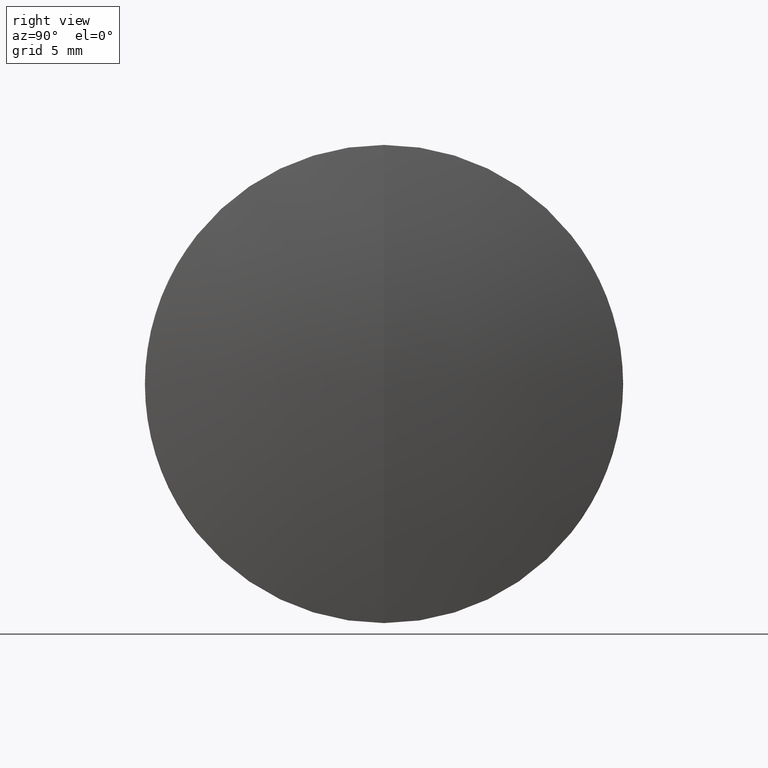
[diagram: clean part render]
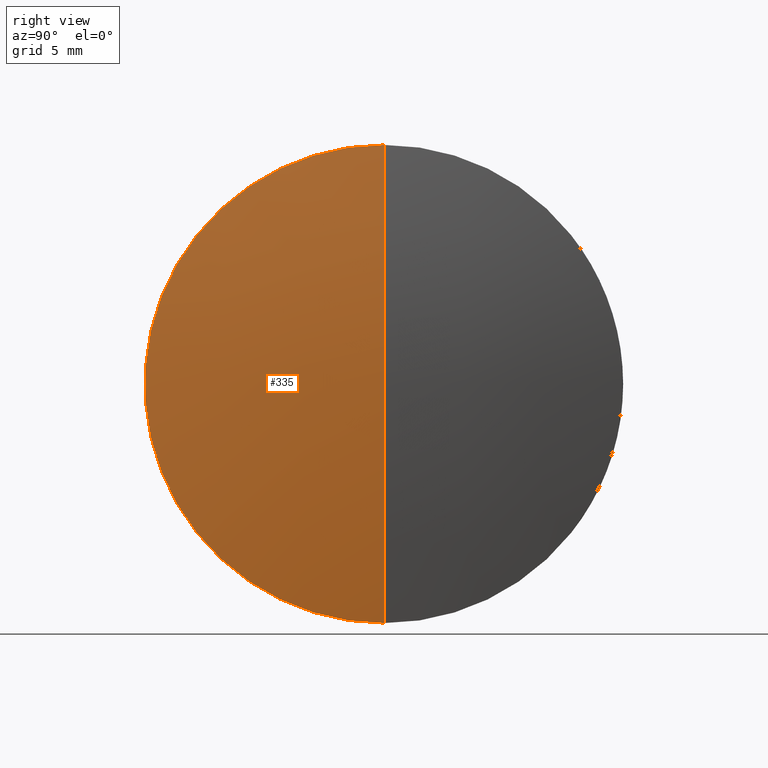
[diagram: same view with one face highlighted and labeled with its STEP entity id]
A machine part, right view. The second image highlights one B-rep face of the part: STEP entity #335.
In plain terms, the highlighted spherical surface has radius 71.12 mm.
Its self-contained STEP definition (entity closure, byte-faithful):
#3 = CARTESIAN_POINT ( 'NONE',  ( -45.74976141422766300, 0.0000000000000000000, 0.0000000000000000000 ) ) ;
#7 = CIRCLE ( 'NONE', #189, 71.12000000000000500 ) ;
#24 = AXIS2_PLACEMENT_3D ( 'NONE', #146, #90, #228 ) ;
#28 = EDGE_CURVE ( 'NONE', #142, #222, #7, .T. ) ;
#33 = EDGE_LOOP ( 'NONE', ( #171, #251, #112 ) ) ;
#36 = EDGE_CURVE ( 'NONE', #142, #306, #312, .T. ) ;
#44 = SPHERICAL_SURFACE ( 'NONE', #24, 71.12000000000000500 ) ;
#50 = CIRCLE ( 'NONE', #214, 12.69999999999999800 ) ;
#62 = DIRECTION ( 'NONE',  ( 0.0000000000000000000, -1.000000000000000000, -1.224646799147353200E-016 ) ) ;
#79 = CARTESIAN_POINT ( 'NONE',  ( 25.37023858577233800, 0.0000000000000000000, -4.354844017767987900E-015 ) ) ;
#81 = CARTESIAN_POINT ( 'NONE',  ( 24.22712334066837100, 0.0000000000000000000, -12.69999999999997400 ) ) ;
#87 = EDGE_CURVE ( 'NONE', #306, #222, #50, .T. ) ;
#90 = DIRECTION ( 'NONE',  ( -0.0000000000000000000, -1.000000000000000000, -0.0000000000000000000 ) ) ;
#95 = DIRECTION ( 'NONE',  ( 0.0000000000000000000, 0.0000000000000000000, 1.000000000000000000 ) ) ;
#106 = CARTESIAN_POINT ( 'NONE',  ( 24.22712334066836700, 0.0000000000000000000, 0.0000000000000000000 ) ) ;
#112 = ORIENTED_EDGE ( 'NONE', *, *, #87, .F. ) ;
#138 = DIRECTION ( 'NONE',  ( -1.000000000000000000, -0.0000000000000000000, -0.0000000000000000000 ) ) ;
#142 = VERTEX_POINT ( 'NONE', #79 ) ;
#146 = CARTESIAN_POINT ( 'NONE',  ( -45.74976141422766300, 0.0000000000000000000, 0.0000000000000000000 ) ) ;
#171 = ORIENTED_EDGE ( 'NONE', *, *, #36, .F. ) ;
#189 = AXIS2_PLACEMENT_3D ( 'NONE', #3, #62, #297 ) ;
#214 = AXIS2_PLACEMENT_3D ( 'NONE', #106, #138, #95 ) ;
#215 = FACE_OUTER_BOUND ( 'NONE', #33, .T. ) ;
#222 = VERTEX_POINT ( 'NONE', #258 ) ;
#228 = DIRECTION ( 'NONE',  ( 0.0000000000000000000, 0.0000000000000000000, -1.000000000000000000 ) ) ;
#235 = DIRECTION ( 'NONE',  ( 0.0000000000000000000, 0.0000000000000000000, 1.000000000000000000 ) ) ;
#241 = AXIS2_PLACEMENT_3D ( 'NONE', #264, #275, #235 ) ;
#251 = ORIENTED_EDGE ( 'NONE', *, *, #28, .T. ) ;
#258 = CARTESIAN_POINT ( 'NONE',  ( 24.22712334066837100, -1.555301434917135700E-015, 12.69999999999997400 ) ) ;
#264 = CARTESIAN_POINT ( 'NONE',  ( -45.74976141422766300, 0.0000000000000000000, 0.0000000000000000000 ) ) ;
#275 = DIRECTION ( 'NONE',  ( 0.0000000000000000000, 1.000000000000000000, -0.0000000000000000000 ) ) ;
#297 = DIRECTION ( 'NONE',  ( 0.0000000000000000000, 1.224646799147353200E-016, -1.000000000000000000 ) ) ;
#306 = VERTEX_POINT ( 'NONE', #81 ) ;
#312 = CIRCLE ( 'NONE', #241, 71.12000000000000500 ) ;
#335 = ADVANCED_FACE ( 'NONE', ( #215 ), #44, .T. ) ;